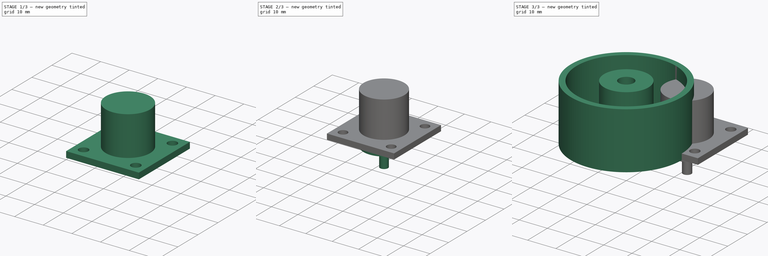
[diagram: build sequence overview — one tinted view per stage of 3, left to right]
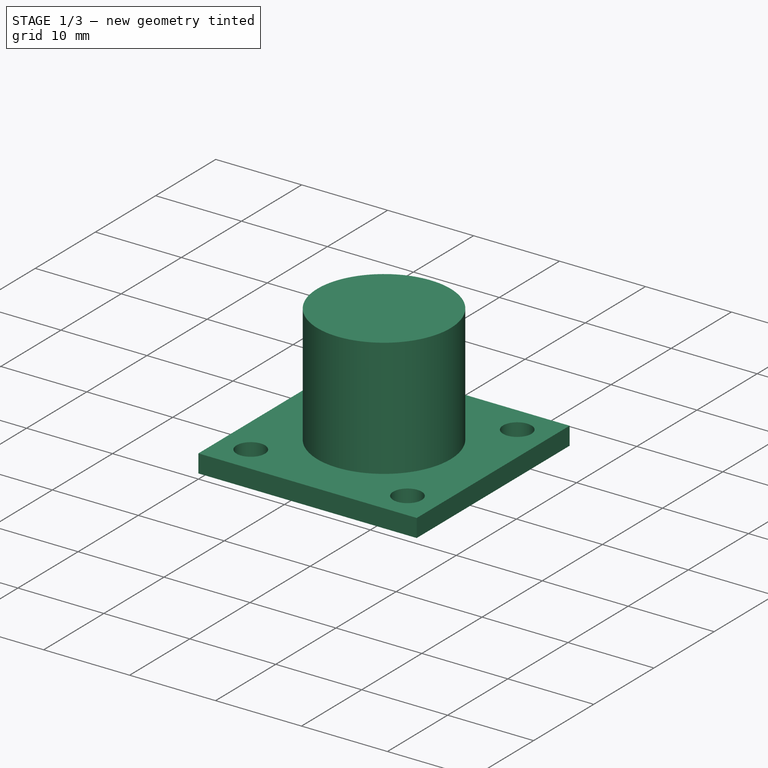
[diagram: stage 1 of 3 — iso view after this stage's code; geometry added in this stage tinted green]
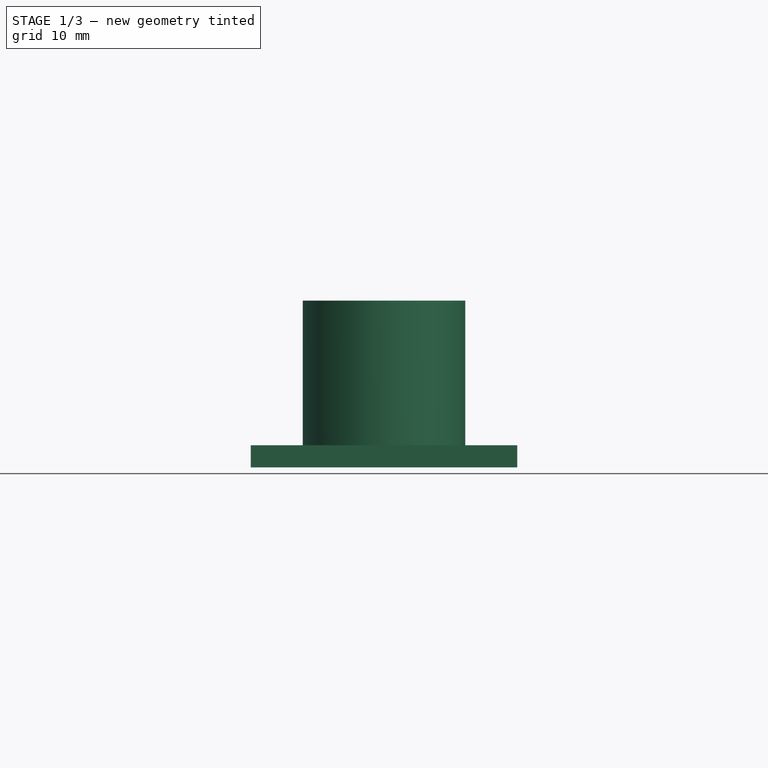
[diagram: stage 1 of 3 — front view after this stage's code; geometry added in this stage tinted green]
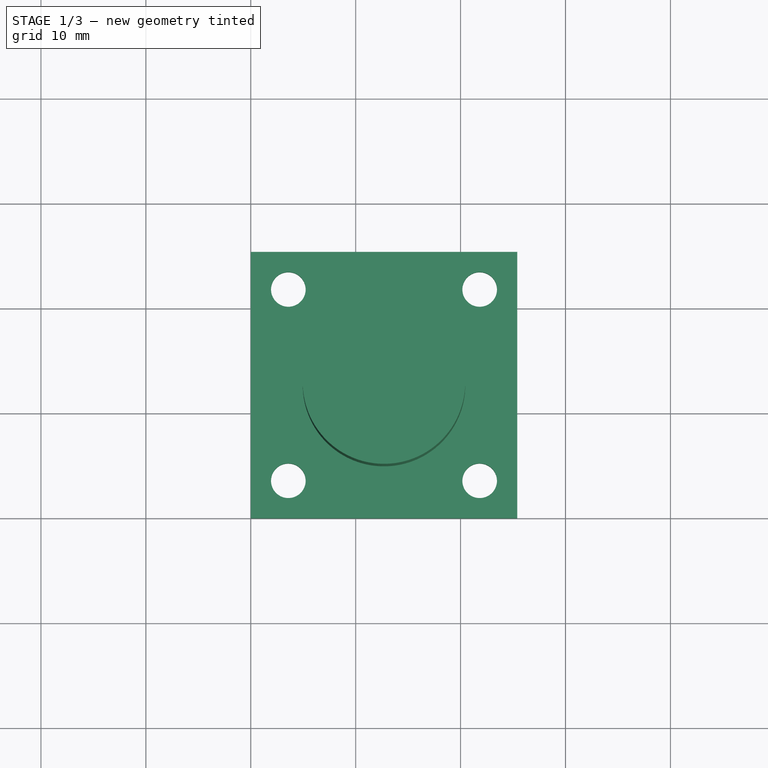
[diagram: stage 1 of 3 — top view after this stage's code; geometry added in this stage tinted green]
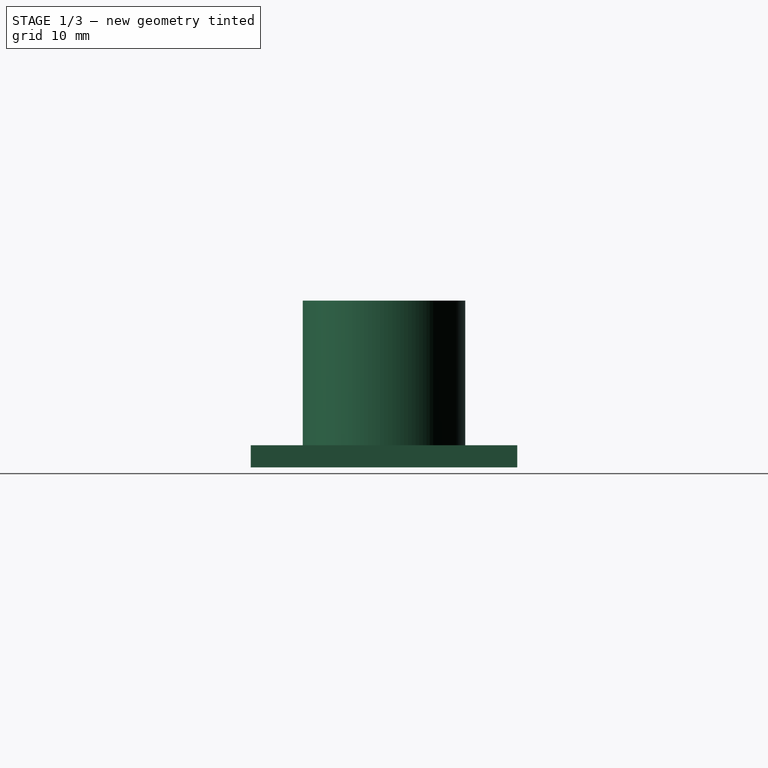
[diagram: stage 1 of 3 — right view after this stage's code; geometry added in this stage tinted green]
FCSTD DOCUMENT  (FreeCAD 0.19R23141 (Git))
Label: SOTA Dipole
License: All rights reserved
LicenseURL: http://en.wikipedia.org/wiki/All_rights_reserved
objects: Sketcher::SketchObject×8, PartDesign::Pad×7, Spreadsheet::Sheet×2, PartDesign::Body×2, Part::Feature×1, PartDesign::Pocket×1
note: 27 computed .brp shape members not serialized (recipe doc carries the construction recipe); baked Part::Feature solids carry a one-line shape summary decoded from their .brp

FEATURE [PartDesign::Body] Body  label="Mast Toroid Holder"
  Group = -> [Sketch,Pad,Sketch001,Pad001,Sketch002,Pad002]
  Origin = -> Origin
  Tip = -> Pad002
FEATURE [Sketcher::SketchObject] Sketch003
  MapMode = 5
  Support = -> [XY_Plane001]
  expr: Constraints[7] = <<Spreadsheet-UHF-CONN>>.flangelength
  sketch-geometry (4):
    g0: LineSegment StartX=0 StartY=0 StartZ=0 EndX=25.4 EndY=0 EndZ=0
    g1: LineSegment StartX=25.4 StartY=0 StartZ=0 EndX=25.4 EndY=25.4 EndZ=0
    g2: LineSegment StartX=25.4 StartY=25.4 StartZ=0 EndX=0 EndY=25.4 EndZ=0
    g3: LineSegment StartX=0 StartY=25.4 StartZ=0 EndX=0 EndY=0 EndZ=0
  constraints (11):
    c: Coincident(g0,g1)
    c: Coincident(g1,g2)
    c: Coincident(g2,g3)
    c: Coincident(g3,g0)
    c: Horizontal(g0)
    c: Vertical(g1)
    c: Coincident(g0,g-1)
    c: Distance(g3) = 25.4
    c: Equal(g2,g3)
    c: Equal(g1,g3)
    c: Equal(g0,g3)
FEATURE [Spreadsheet::Sheet] Spreadsheet001  label="Spreadsheet-UHF-CONN"
  cells = A1=Flange Height; B1(flangeheight)==0.083"; A2=Flange Size; B2(flangelength)==1"; A3=Fastener Diameter; B3(fastenerdiameter)==0.13"; A4=Fastener Edge Offset; B4(fasteneredgeoffset)==0.141"; A5=Connector Threaded Diameter; B5(connthreadeddiameter)==0.61"; A6=Connector Threaded Height; B6(connthreadedheight)==0.626"; A7=Solder Side Threaded Hieght; B7(soldersidethreadedconnheight)==B8 / 3; A8=Solder Pin Height From Threaded Tip; B8(solderpinheight)==1.051" - B6; A9=Solder Pin Diameter; B9(solderpindiameter)==0.118"
FEATURE [PartDesign::Pad] Pad003
  Direction = (1,1,1)
  Length = 2.1082
  Length2 = 100.076
  Profile = -> Sketch003
  Type = 0
  expr: Length = <<Spreadsheet-UHF-CONN>>.flangeheight
FEATURE [Sketcher::SketchObject] Sketch004
  ExternalGeometry = -> [Pad003]
  MapMode = 5
  Placement = pos=(0,0,2.1082) rot=(0,0,1;0rad)
  Support = -> [Pad003]
  expr: Constraints[11] = <<Spreadsheet-UHF-CONN>>.fasteneredgeoffset
  expr: Constraints[9] = <<Spreadsheet-UHF-CONN>>.fasteneredgeoffset
  expr: Constraints[8] = <<Spreadsheet-UHF-CONN>>.fasteneredgeoffset
  expr: Constraints[7] = <<Spreadsheet-UHF-CONN>>.fasteneredgeoffset
  expr: Constraints[6] = <<Spreadsheet-UHF-CONN>>.fasteneredgeoffset
  expr: Constraints[10] = <<Spreadsheet-UHF-CONN>>.fasteneredgeoffset
  expr: Constraints[5] = <<Spreadsheet-UHF-CONN>>.fasteneredgeoffset
  expr: Constraints[4] = <<Spreadsheet-UHF-CONN>>.fasteneredgeoffset
  expr: Constraints[0] = <<Spreadsheet-UHF-CONN>>.fastenerdiameter / 2
  sketch-geometry (4):
    g0: Circle CenterX=3.5814 CenterY=21.8186 CenterZ=0 NormalX=0 NormalY=0 NormalZ=1 AngleXU=0 Radius=1.651
    g1: Circle CenterX=21.8186 CenterY=21.8186 CenterZ=0 NormalX=0 NormalY=0 NormalZ=1 AngleXU=0 Radius=1.651
    g2: Circle CenterX=21.8186 CenterY=3.5814 CenterZ=0 NormalX=0 NormalY=0 NormalZ=1 AngleXU=0 Radius=1.651
    g3: Circle CenterX=3.5814 CenterY=3.5814 CenterZ=0 NormalX=0 NormalY=0 NormalZ=1 AngleXU=0 Radius=1.651
  constraints (12):
    c: Radius(g0) = 1.651
    c: Equal(g0,g1)
    c: Equal(g0,g2)
    c: Equal(g0,g3)
    c: DistanceY(g-1,g3) = 3.5814
    c: DistanceX(g-1,g3) = 3.5814
    c: DistanceX(g-4,g0) = 3.5814
    c: DistanceY(g0,g-4) = 3.5814
    c: DistanceX(g1,g-6) = 3.5814
    c: DistanceY(g1,g-6) = 3.5814
    c: DistanceY(g-6,g2) = 3.5814
    c: DistanceX(g2,g-6) = 3.5814
FEATURE [PartDesign::Pocket] Pocket
  BaseFeature = -> Pad003
  Length = 5.08
  Length2 = 100.076
  Profile = -> Sketch004
  Type = 1
FEATURE [Sketcher::SketchObject] Sketch005
  MapMode = 5
  Support = -> [XY_Plane001]
  expr: Constraints[2] = <<Spreadsheet-UHF-CONN>>.connthreadeddiameter / 2
  expr: Constraints[1] = <<Spreadsheet-UHF-CONN>>.flangelength / 2
  expr: Constraints[0] = <<Spreadsheet-UHF-CONN>>.flangelength / 2
  sketch-geometry (1):
    g0: Circle CenterX=12.7 CenterY=12.7 CenterZ=0 NormalX=0 NormalY=0 NormalZ=1 AngleXU=0 Radius=7.747
  constraints (3):
    c: DistanceY(g-1,g0) = 12.7
    c: DistanceX(g-1,g0) = 12.7
    c: Radius(g0) = 7.747
FEATURE [PartDesign::Pad] Pad004
  BaseFeature = -> Pocket
  Direction = (1,1,1)
  Length = 15.9004
  Length2 = 100.076
  Profile = -> Sketch005
  Type = 0
  expr: Length = <<Spreadsheet-UHF-CONN>>.connthreadedheight
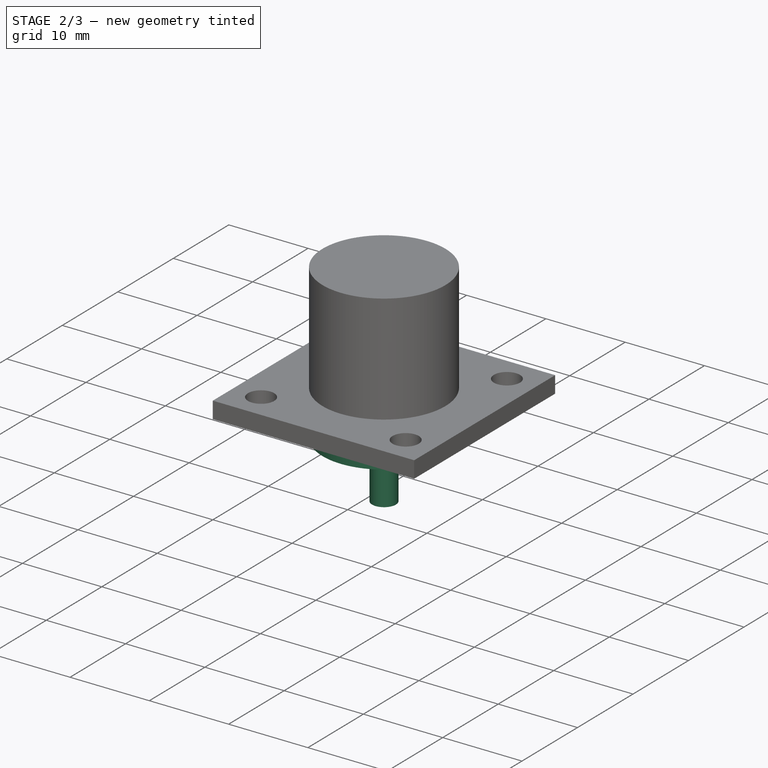
[diagram: stage 2 of 3 — iso view after this stage's code; geometry added in this stage tinted green]
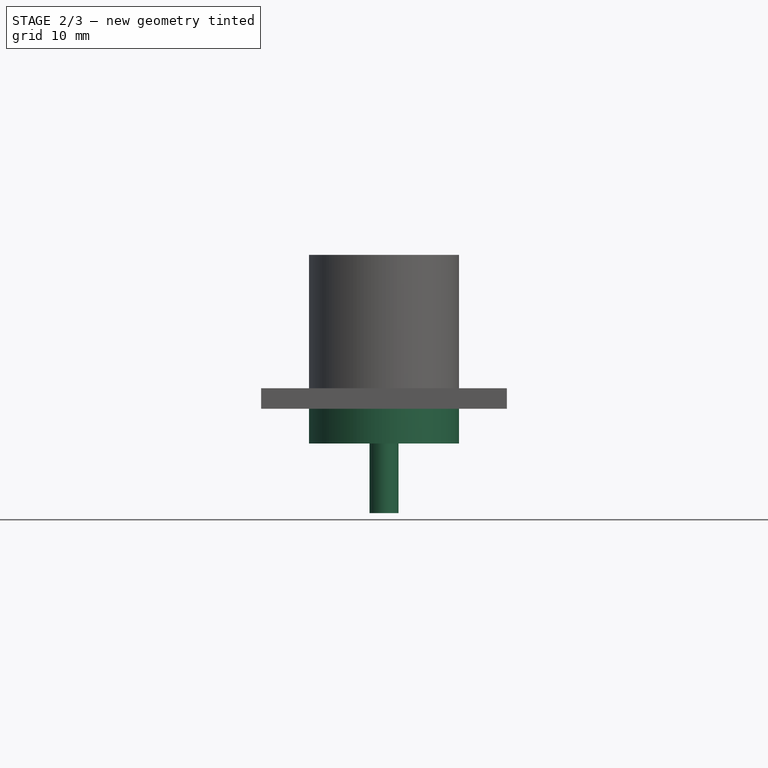
[diagram: stage 2 of 3 — front view after this stage's code; geometry added in this stage tinted green]
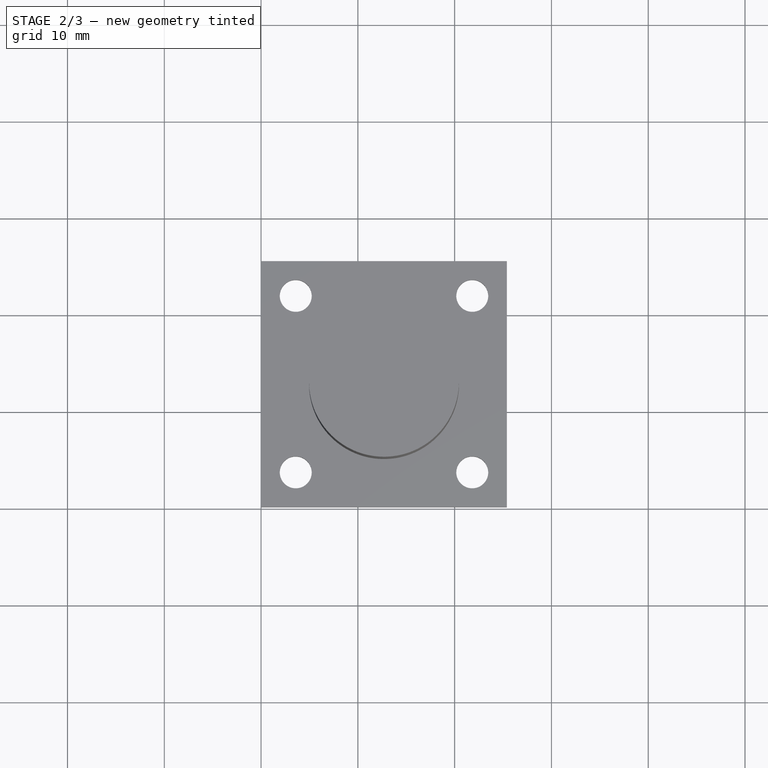
[diagram: stage 2 of 3 — top view after this stage's code; geometry added in this stage tinted green]
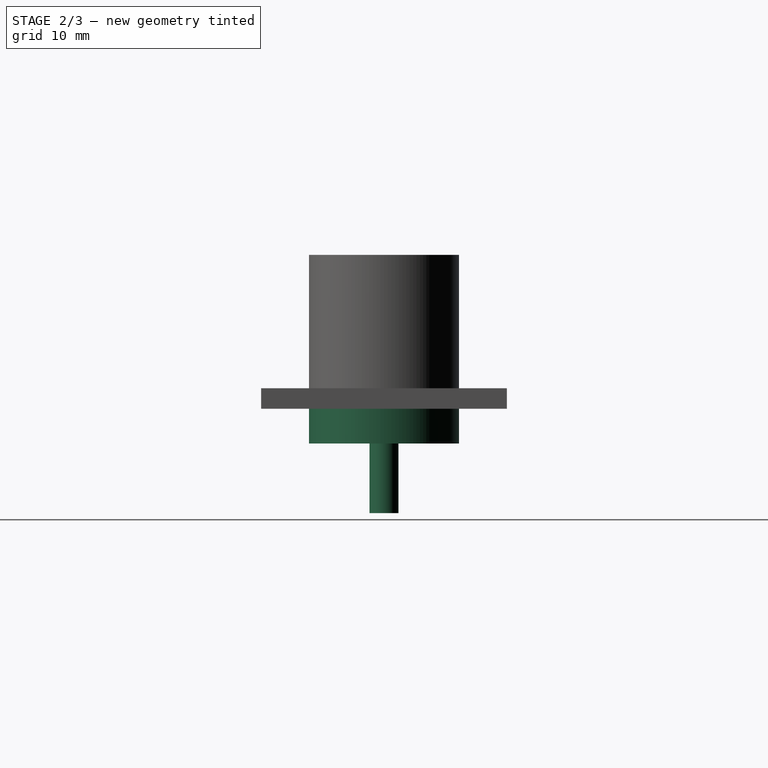
[diagram: stage 2 of 3 — right view after this stage's code; geometry added in this stage tinted green]
FEATURE [Sketcher::SketchObject] Sketch006
  MapMode = 5
  Support = -> [XY_Plane001]
  expr: Constraints[2] = <<Spreadsheet-UHF-CONN>>.flangelength / 2
  expr: Constraints[1] = <<Spreadsheet-UHF-CONN>>.flangelength / 2
  expr: Constraints[0] = <<Spreadsheet-UHF-CONN>>.connthreadeddiameter / 2
  sketch-geometry (1):
    g0: Circle CenterX=12.7 CenterY=12.7 CenterZ=0 NormalX=0 NormalY=0 NormalZ=1 AngleXU=0 Radius=7.747
  constraints (3):
    c: Radius(g0) = 7.747
    c: DistanceX(g-1,g0) = 12.7
    c: DistanceY(g-1,g0) = 12.7
FEATURE [PartDesign::Pad] Pad005
  BaseFeature = -> Pad004
  Direction = (1,1,1)
  Length = 3.59833
  Length2 = 100.076
  Profile = -> Sketch006
  Reversed = true
  Type = 0
  expr: Length = <<Spreadsheet-UHF-CONN>>.soldersidethreadedconnheight
FEATURE [Sketcher::SketchObject] Sketch007
  MapMode = 5
  Support = -> [XY_Plane001]
  expr: Constraints[2] = <<Spreadsheet-UHF-CONN>>.solderpindiameter / 2
  expr: Constraints[1] = <<Spreadsheet-UHF-CONN>>.flangelength / 2
  expr: Constraints[0] = <<Spreadsheet-UHF-CONN>>.flangelength / 2
  sketch-geometry (1):
    g0: Circle CenterX=12.7 CenterY=12.7 CenterZ=0 NormalX=0 NormalY=0 NormalZ=1 AngleXU=0 Radius=1.4986
  constraints (3):
    c: DistanceY(g-1,g0) = 12.7
    c: DistanceX(g-1,g0) = 12.7
    c: Radius(g0) = 1.4986
FEATURE [PartDesign::Pad] Pad006
  BaseFeature = -> Pad005
  Direction = (1,1,1)
  Length = 10.795
  Length2 = 100.076
  Profile = -> Sketch007
  Reversed = true
  Type = 0
  expr: Length = <<Spreadsheet-UHF-CONN>>.solderpinheight
FEATURE [PartDesign::Body] Body001  label="UHF Connector - 25-7350"
  Group = -> [Sketch003,Pad003,Sketch004,Pocket,Sketch005,Pad004,Sketch006,Pad005,Sketch007,Pad006]
  Origin = -> Origin001
  Placement = pos=(35.56,0,0) rot=(0,0,1;0rad)
  Tip = -> Pad006
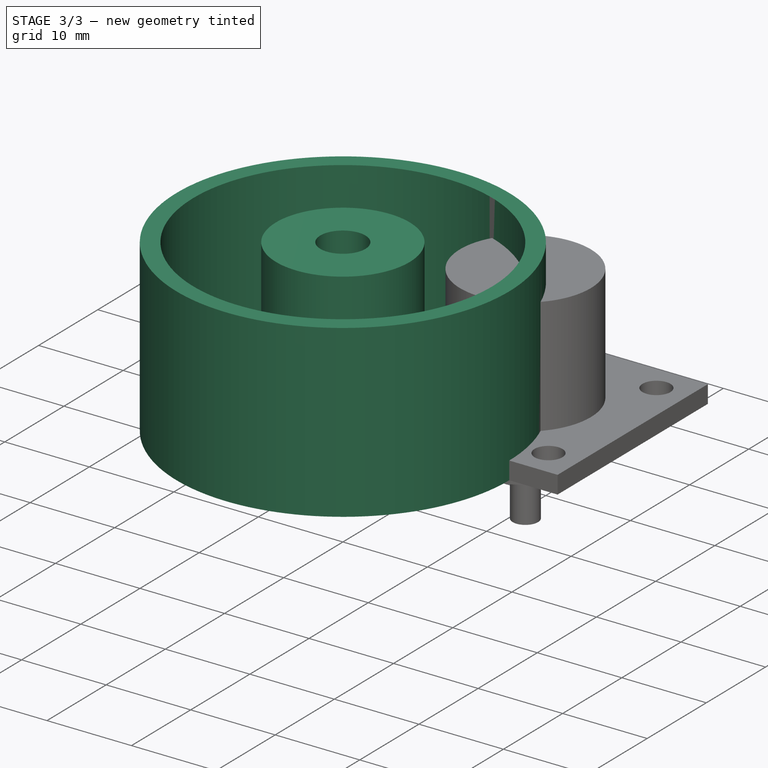
[diagram: stage 3 of 3 — iso view after this stage's code; geometry added in this stage tinted green]
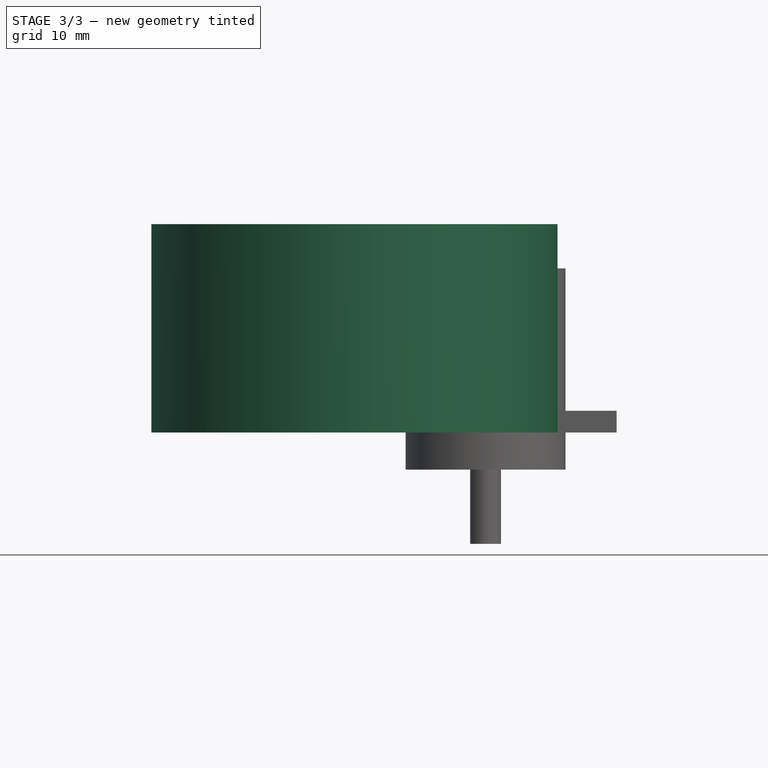
[diagram: stage 3 of 3 — front view after this stage's code; geometry added in this stage tinted green]
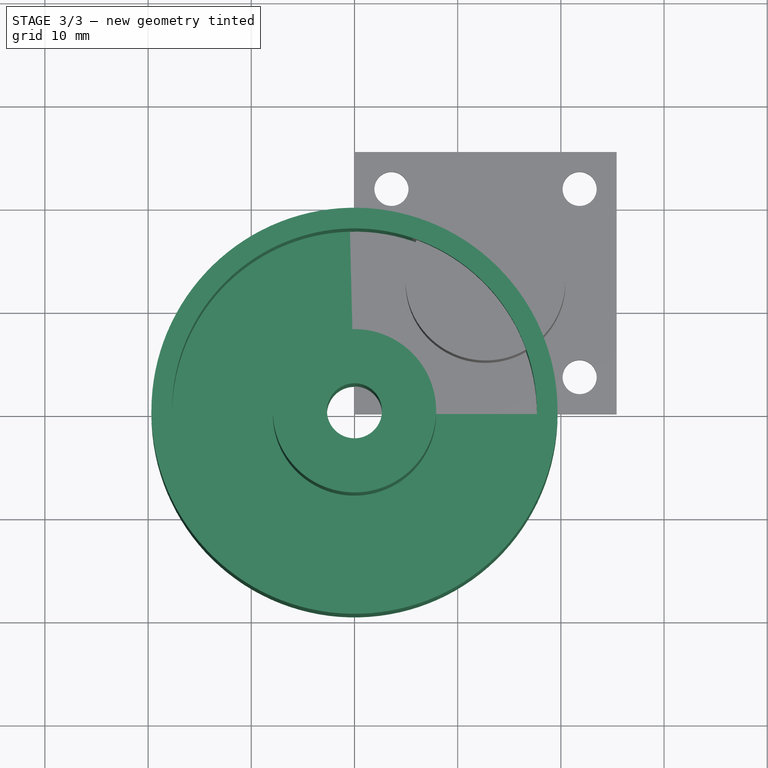
[diagram: stage 3 of 3 — top view after this stage's code; geometry added in this stage tinted green]
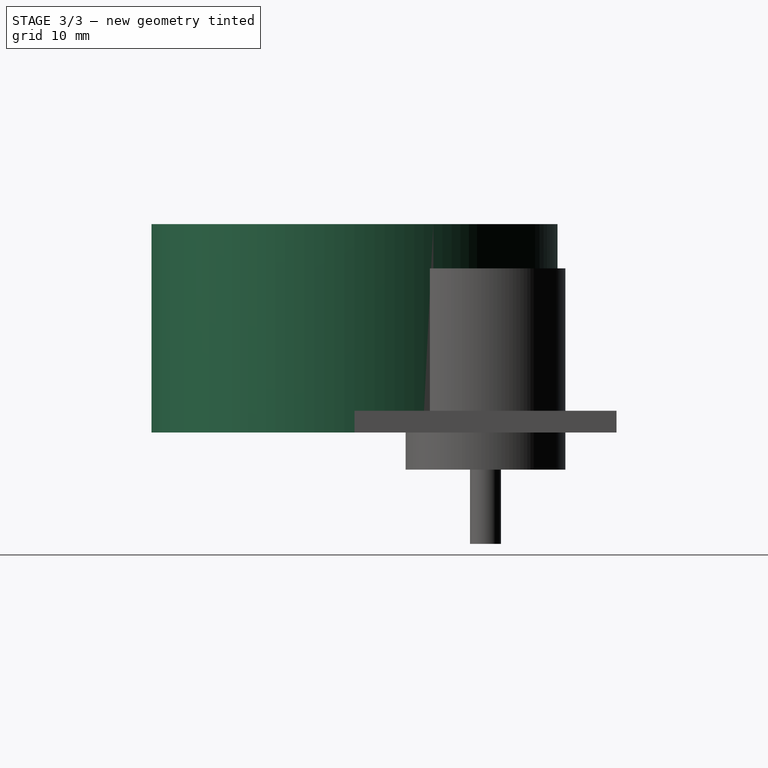
[diagram: stage 3 of 3 — right view after this stage's code; geometry added in this stage tinted green]
FEATURE [Part::Feature] Solid  label="5943001001"
  Placement = pos=(0,1.4e-15,6.35) rot=(1,0,0;1.5708rad)
  shape: bbox 29.01 x 29.01 x 7.493 mm, 14 faces (baked)
FEATURE [Sketcher::SketchObject] Sketch
  MapMode = 5
  Support = -> [XY_Plane]
  expr: .Constraints.Toroid Holder Center Wall = Spreadsheet.toroid_id / 2 - Spreadsheet.toroidholdercentermast_space
  expr: .Constraints.Toroid Holder Center = Spreadsheet.toroidholdercenter / 2
  sketch-geometry (2):
    g0: Circle CenterX=0 CenterY=0 CenterZ=0 NormalX=0 NormalY=0 NormalZ=1 AngleXU=0 Radius=2.667
    g1: Circle CenterX=0 CenterY=0 CenterZ=0 NormalX=0 NormalY=0 NormalZ=1 AngleXU=0 Radius=7.9121
  constraints (4):
    c: Coincident(g0,g-1)
    c: Radius(g0) = 2.667  'Toroid Holder Center'
    c: Coincident(g1,g0)
    c: Radius(g1) = 7.9121  'Toroid Holder Center Wall'
FEATURE [Spreadsheet::Sheet] Spreadsheet  label="Spreadsheet-TOROID-MAST-HOLDER"
  cells = A1=Toroid ID; B1(toroid_id)==0.748"; A2=Toroid OD; B2(toroid_od)==1.142"; A3=Toroid Height; B3(toroid_height)==0.295"; A4=Toroid Holder Center; B4(toroidholdercenter)==0.21"; A5=Toroid Hole Center Space; B5(toroidholdercentermast_space)==0.125" / 2; A6=Toroid Holder Wall Thickness; B6(toroidholderwallthickness)==2mm; A7=Toroid Holder Center Wall Outer; B7(toroidholdercenterholeouter)==B4 + B6; A8=Toroid Holder Outer Wall Space; B8==0.25" / 2; A9=Toroid Holder Outer Wall INSIDE; B9(toroidholderouterwall_inside)==B2 / 2 + B8; A10=Toroid Holder Outer Wall OUTSIDE; B10(toroidholderouterwall_outside)==B9 + B6; A11=Toroid Holder Z Space; B11==0.25"; A12=Toroid Holder Height; B12(toroidholderheight)==B3 + 2 * B11
FEATURE [PartDesign::Pad] Pad  label="Toroid-Holder-Center"
  Direction = (1,1,1)
  Length = 20.193
  Length2 = 100.076
  Profile = -> Sketch
  Type = 0
  expr: Length = Spreadsheet.toroidholderheight
FEATURE [Sketcher::SketchObject] Sketch001  label="Floor"
  MapMode = 5
  Support = -> [XY_Plane]
  expr: Constraints[3] = Spreadsheet.toroidholdercenter
  expr: Constraints[1] = Spreadsheet.toroidholderouterwall_outside
  sketch-geometry (2):
    g0: Circle CenterX=0 CenterY=0 CenterZ=0 NormalX=0 NormalY=0 NormalZ=1 AngleXU=0 Radius=19.6784
    g1: Circle CenterX=0 CenterY=0 CenterZ=0 NormalX=0 NormalY=0 NormalZ=1 AngleXU=0 Radius=5.334
  constraints (4):
    c: Coincident(g0,g-1)
    c: Radius(g0) = 19.6784
    c: Coincident(g1,g0)
    c: Radius(g1) = 5.334
FEATURE [PartDesign::Pad] Pad001  label="Floor001"
  BaseFeature = -> Pad
  Direction = (1,1,1)
  Length = 2
  Length2 = 100
  Profile = -> Sketch001
  Type = 0
  expr: Length = Spreadsheet.toroidholderwallthickness
FEATURE [Sketcher::SketchObject] Sketch002
  MapMode = 5
  Support = -> [XY_Plane]
  expr: Constraints[3] = Spreadsheet.toroidholderouterwall_outside
  expr: Constraints[2] = Spreadsheet.toroidholderouterwall_inside
  sketch-geometry (2):
    g0: Circle CenterX=0 CenterY=0 CenterZ=0 NormalX=0 NormalY=0 NormalZ=1 AngleXU=0 Radius=17.6784
    g1: Circle CenterX=0 CenterY=0 CenterZ=0 NormalX=0 NormalY=0 NormalZ=1 AngleXU=0 Radius=19.6784
  constraints (4):
    c: Coincident(g0,g-1)
    c: Coincident(g1,g0)
    c: Radius(g0) = 17.6784
    c: Radius(g1) = 19.6784
FEATURE [PartDesign::Pad] Pad002
  BaseFeature = -> Pad001
  Direction = (1,1,1)
  Length = 20.193
  Length2 = 100.076
  Profile = -> Sketch002
  Type = 0
  expr: Length = Spreadsheet.toroidholderheight
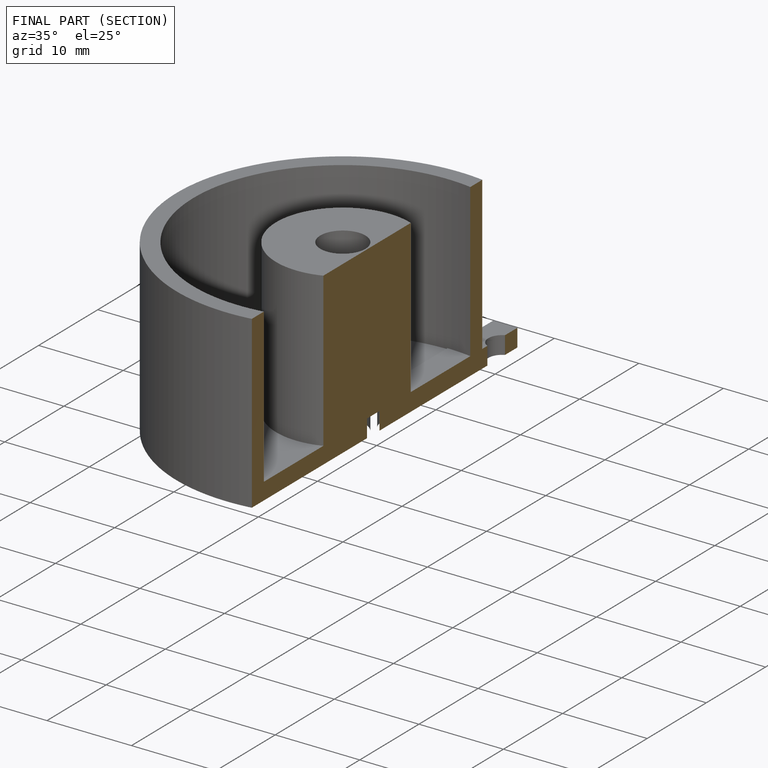
[diagram: finished part — half-section view (interior)]
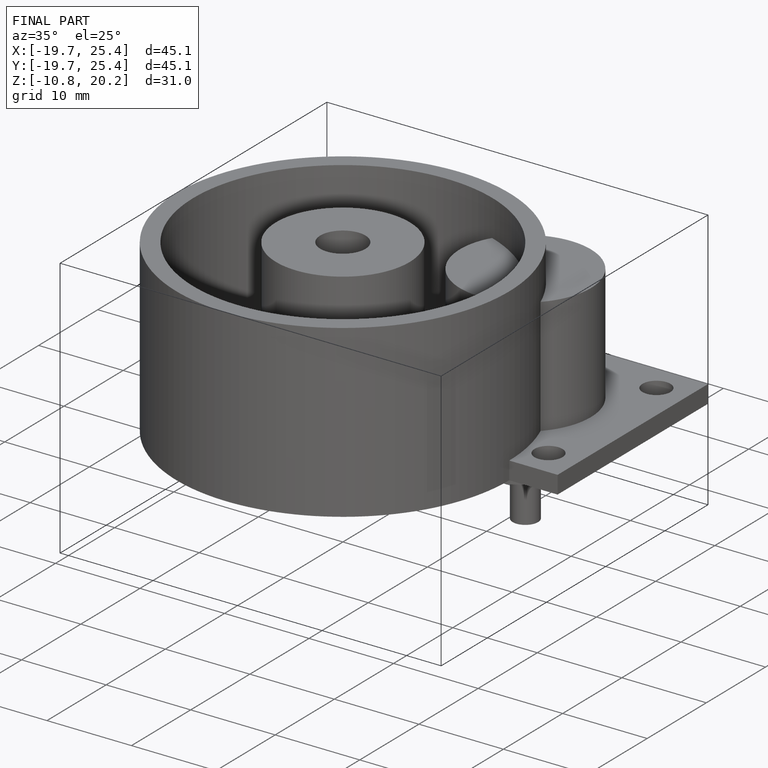
[diagram: finished part — iso view with bounding-box wireframe]
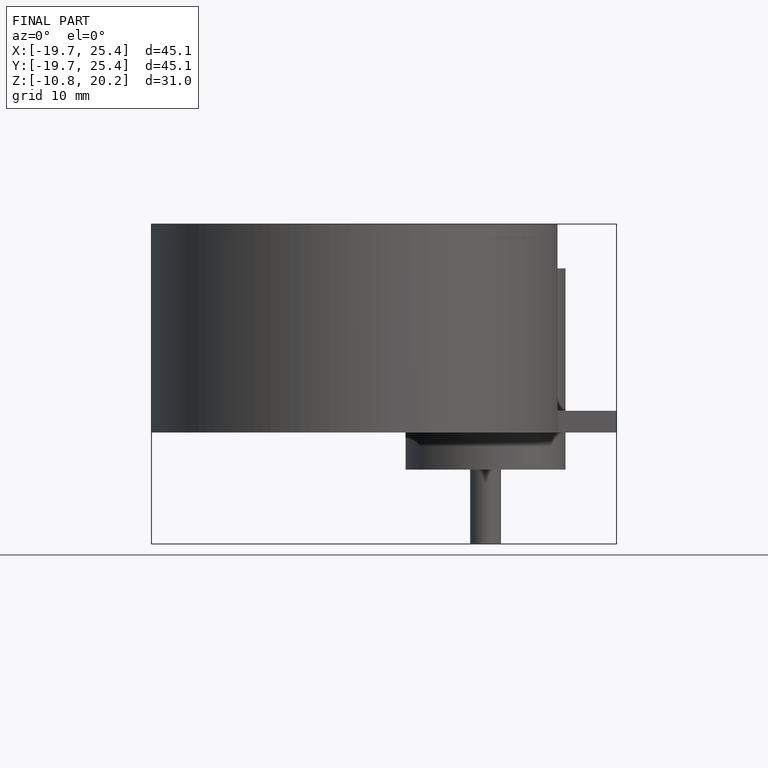
[diagram: finished part — front view with bounding-box wireframe]
